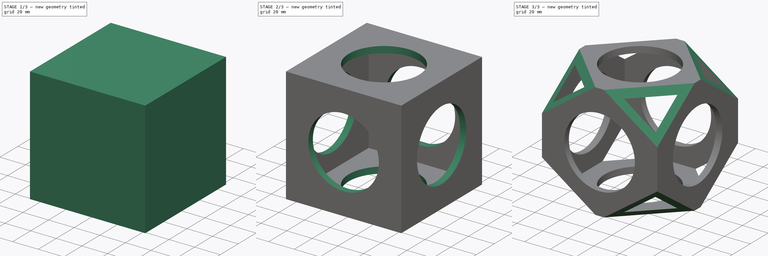
[diagram: build sequence overview — one tinted view per stage of 3, left to right]
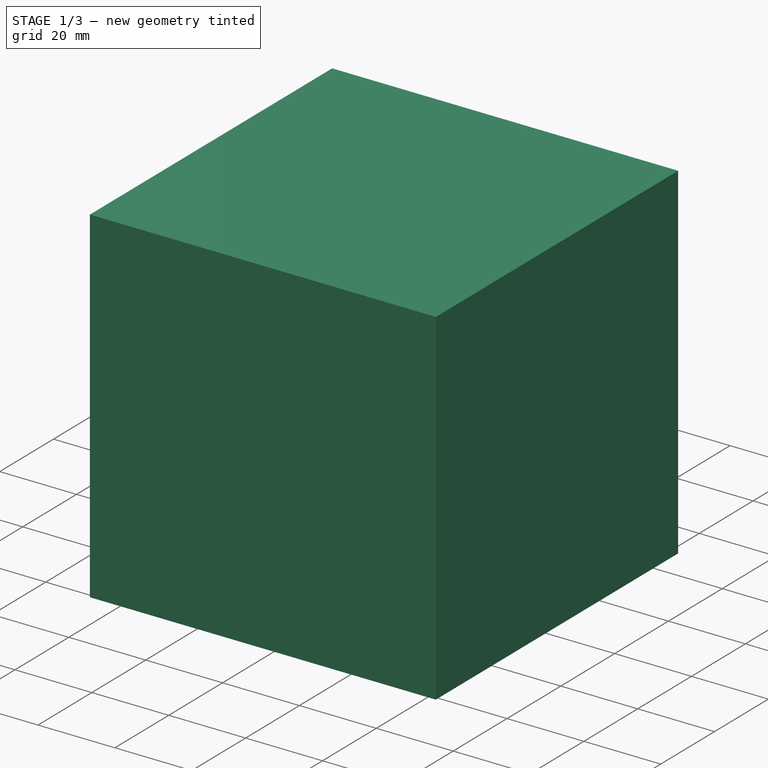
[diagram: stage 1 of 3 — iso view after this stage's code; geometry added in this stage tinted green]
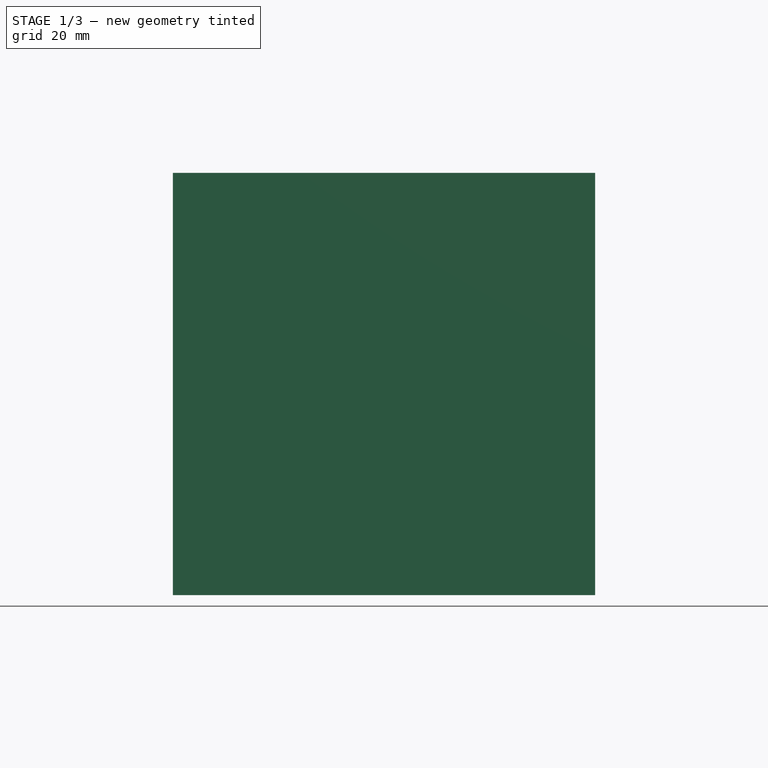
[diagram: stage 1 of 3 — front view after this stage's code; geometry added in this stage tinted green]
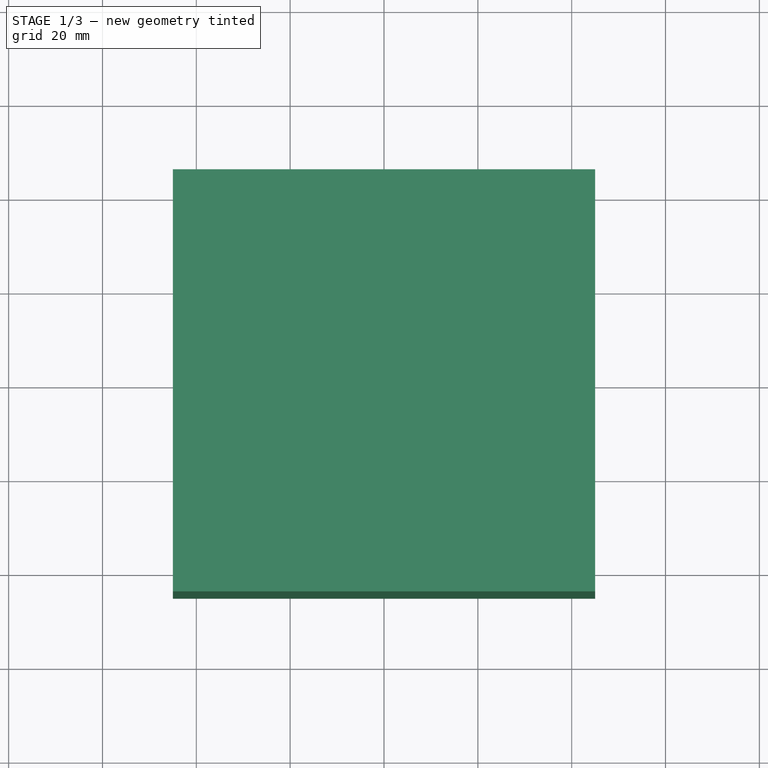
[diagram: stage 1 of 3 — top view after this stage's code; geometry added in this stage tinted green]
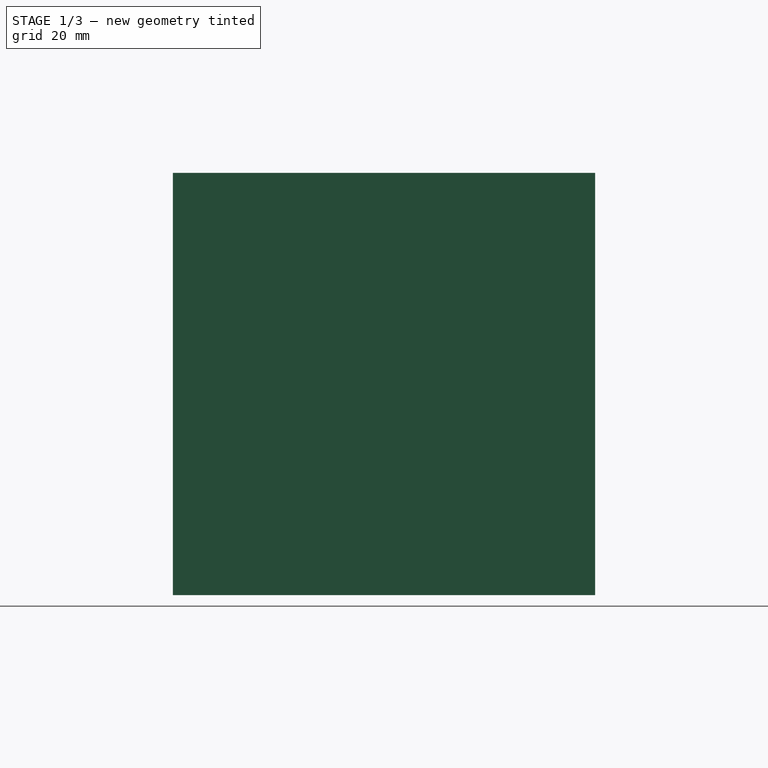
[diagram: stage 1 of 3 — right view after this stage's code; geometry added in this stage tinted green]
FCSTD DOCUMENT  (FreeCAD 0.19R23463 (Git))
Label: WhiffleBall
License: All rights reserved
LicenseURL: http://en.wikipedia.org/wiki/All_rights_reserved
objects: Sketcher::SketchObject×7, PartDesign::Pocket×6, PartDesign::Pad×1, PartDesign::Body×1
note: 22 computed .brp shape members not serialized (recipe doc carries the construction recipe); baked Part::Feature solids carry a one-line shape summary decoded from their .brp

FEATURE [Sketcher::SketchObject] Sketch  label="Sk_Würfel"
  MapMode = 5
  Support = -> [XY_Plane]
  sketch-geometry (4):
    g0: LineSegment StartX=-45 StartY=45 StartZ=0 EndX=45 EndY=45 EndZ=0
    g1: LineSegment StartX=45 StartY=45 StartZ=0 EndX=45 EndY=-45 EndZ=0
    g2: LineSegment StartX=45 StartY=-45 StartZ=0 EndX=-45 EndY=-45 EndZ=0
    g3: LineSegment StartX=-45 StartY=-45 StartZ=0 EndX=-45 EndY=45 EndZ=0
  constraints (11):
    c: Coincident(g0,g1)
    c: Coincident(g1,g2)
    c: Coincident(g2,g3)
    c: Coincident(g3,g0)
    c: Horizontal(g0)
    c: Horizontal(g2)
    c: Vertical(g1)
    c: Vertical(g3)
    c: Symmetric(g0,g1,g-1)
    c: Equal(g0,g1)
    c: Distance(g0) = 90
FEATURE [PartDesign::Pad] Pad
  Direction = (1,1,1)
  Length = 90
  Length2 = 100
  Midplane = true
  Profile = -> Sketch
  Type = 0
FEATURE [Sketcher::SketchObject] Sketch001  label="Sk_Hohlraum"
  MapMode = 5
  Support = -> [XY_Plane]
  sketch-geometry (4):
    g0: LineSegment StartX=-40 StartY=40 StartZ=0 EndX=40 EndY=40 EndZ=0
    g1: LineSegment StartX=40 StartY=40 StartZ=0 EndX=40 EndY=-40 EndZ=0
    g2: LineSegment StartX=40 StartY=-40 StartZ=0 EndX=-40 EndY=-40 EndZ=0
    g3: LineSegment StartX=-40 StartY=-40 StartZ=0 EndX=-40 EndY=40 EndZ=0
  constraints (11):
    c: Coincident(g0,g1)
    c: Coincident(g1,g2)
    c: Coincident(g2,g3)
    c: Coincident(g3,g0)
    c: Horizontal(g0)
    c: Horizontal(g2)
    c: Vertical(g1)
    c: Vertical(g3)
    c: Symmetric(g0,g1,g-1)
    c: Equal(g0,g1)
    c: Distance(g0) = 80
FEATURE [PartDesign::Pocket] Pocket
  BaseFeature = -> Pad
  Length = 80
  Length2 = 100
  Midplane = true
  Profile = -> Sketch001
  Type = 0
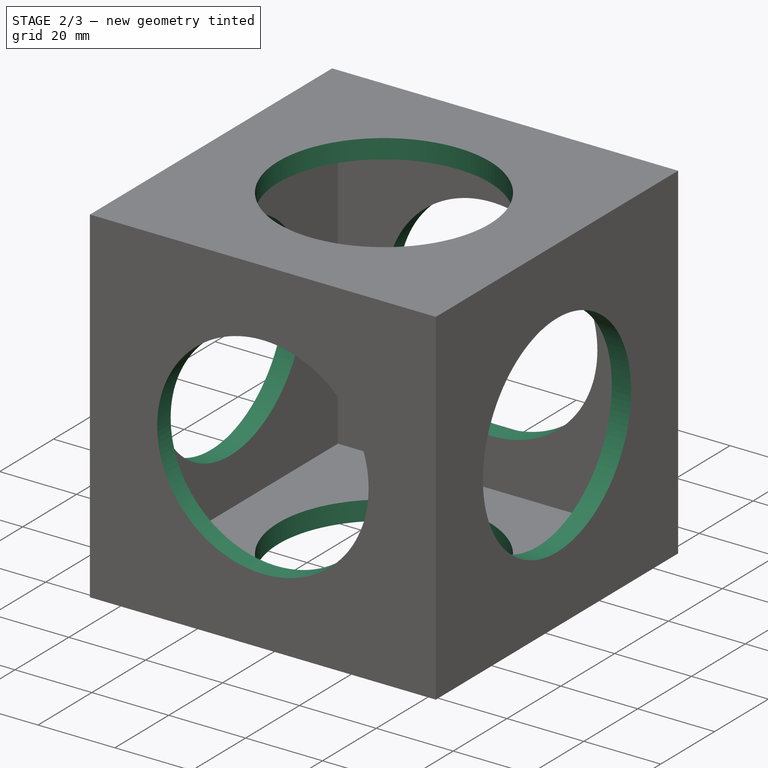
[diagram: stage 2 of 3 — iso view after this stage's code; geometry added in this stage tinted green]
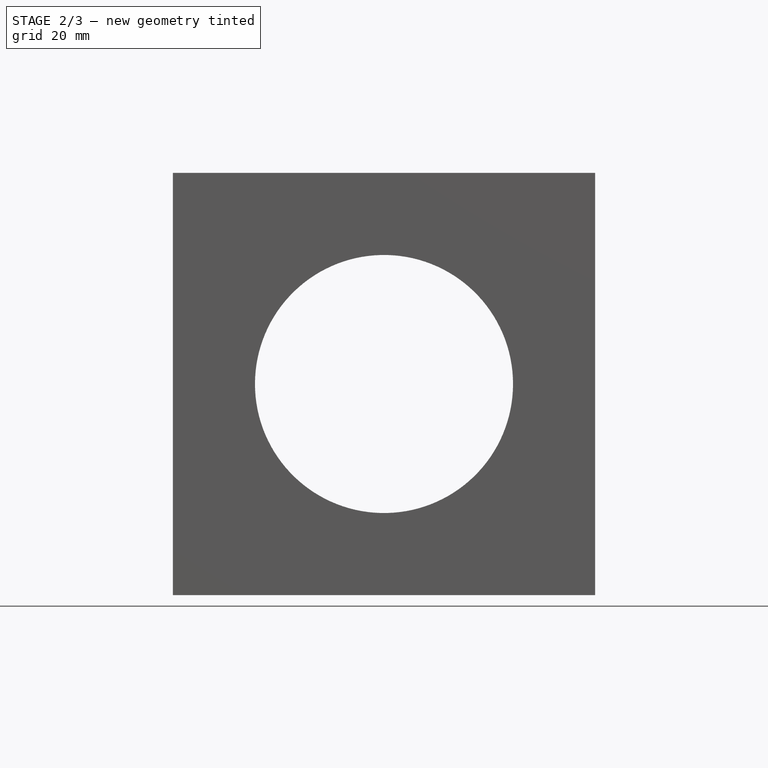
[diagram: stage 2 of 3 — front view after this stage's code; geometry added in this stage tinted green]
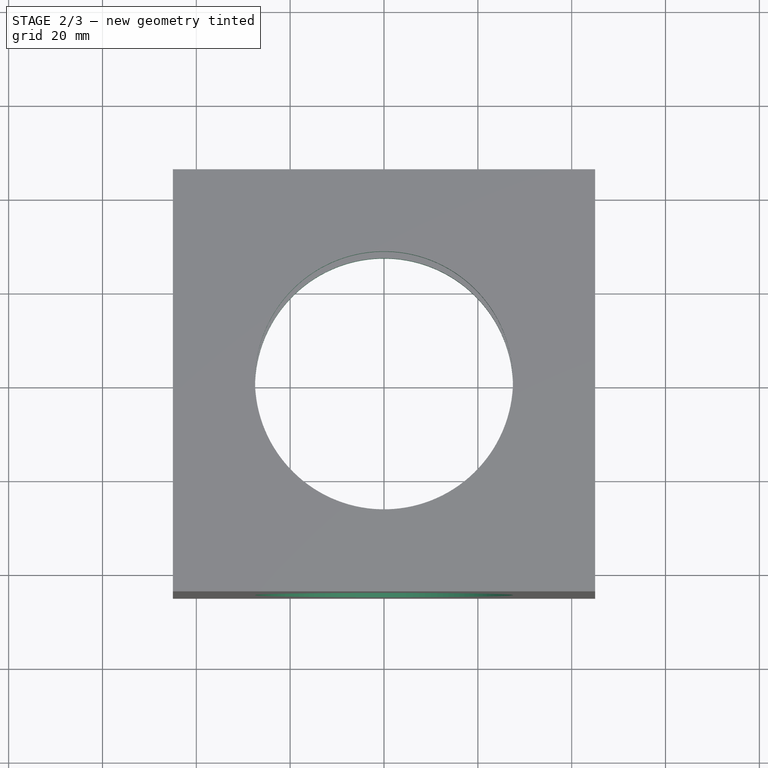
[diagram: stage 2 of 3 — top view after this stage's code; geometry added in this stage tinted green]
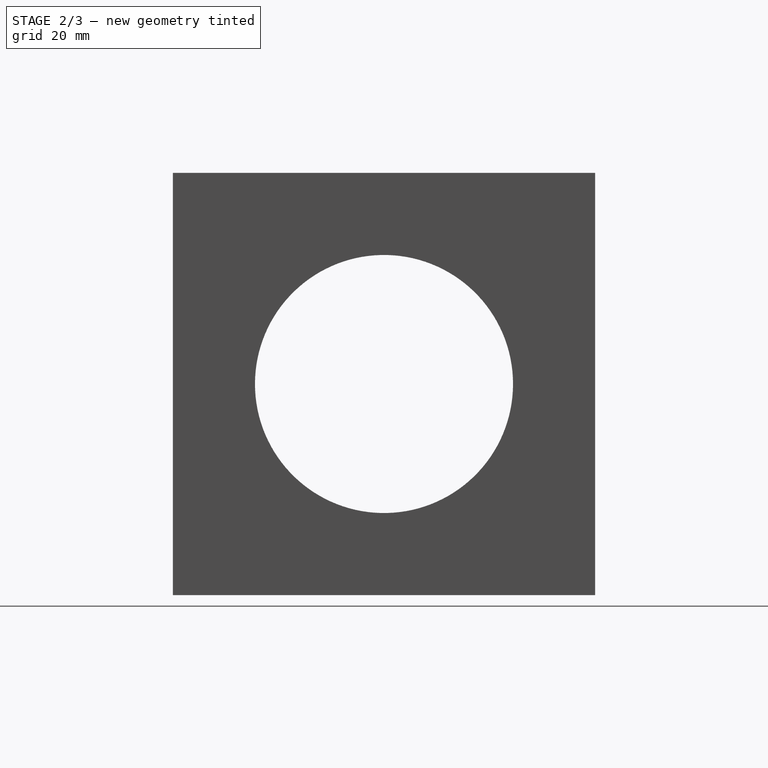
[diagram: stage 2 of 3 — right view after this stage's code; geometry added in this stage tinted green]
FEATURE [Sketcher::SketchObject] Sketch002  label="Sk_Zyl_XY"
  MapMode = 5
  Support = -> [XY_Plane]
  sketch-geometry (1):
    g0: Circle CenterX=0 CenterY=0 CenterZ=0 NormalX=0 NormalY=0 NormalZ=1 AngleXU=0 Radius=27.5
  constraints (2):
    c: Coincident(g0,g-1)
    c: Diameter(g0) = 55  'D_Zyl'
FEATURE [PartDesign::Pocket] Pocket001
  BaseFeature = -> Pocket
  Length = 5
  Length2 = 100
  Midplane = true
  Profile = -> Sketch002
  Type = 1
FEATURE [Sketcher::SketchObject] Sketch003  label="Sk_Zyl_XZ"
  MapMode = 5
  Placement = pos=(0,0,0) rot=(1,0,0;1.5708rad)
  Support = -> [XZ_Plane]
  expr: Constraints[1] = <<Sk_Zyl_XY>>.Constraints.D_Zyl
  sketch-geometry (1):
    g0: Circle CenterX=0 CenterY=0 CenterZ=0 NormalX=0 NormalY=0 NormalZ=1 AngleXU=0 Radius=27.5
  constraints (2):
    c: Coincident(g0,g-1)
    c: Diameter(g0) = 55
FEATURE [PartDesign::Pocket] Pocket002
  BaseFeature = -> Pocket001
  Length = 90
  Length2 = 100
  Midplane = true
  Profile = -> Sketch003
  Type = 1
FEATURE [Sketcher::SketchObject] Sketch004  label="Sk_Zyl_YZ"
  MapMode = 5
  Placement = pos=(0,0,0) rot=(0.57735,0.57735,0.57735;2.0944rad)
  Support = -> [YZ_Plane]
  expr: Constraints[1] = <<Sk_Zyl_XY>>.Constraints.D_Zyl
  sketch-geometry (1):
    g0: Circle CenterX=0 CenterY=0 CenterZ=0 NormalX=0 NormalY=0 NormalZ=1 AngleXU=0 Radius=27.5
  constraints (2):
    c: Coincident(g0,g-1)
    c: Diameter(g0) = 55
FEATURE [PartDesign::Pocket] Pocket003
  BaseFeature = -> Pocket002
  Length = 5
  Length2 = 100
  Midplane = true
  Profile = -> Sketch004
  Type = 1
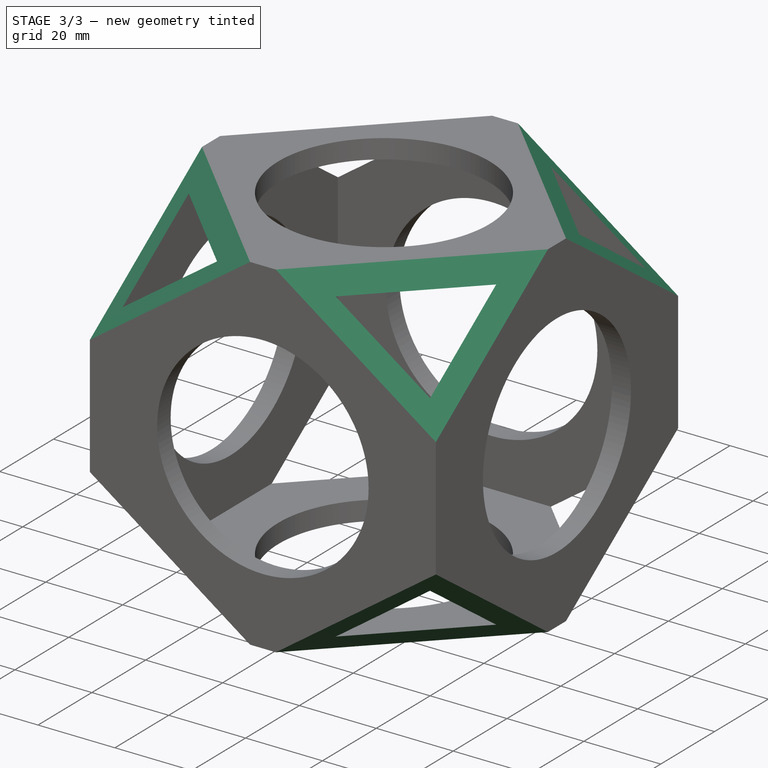
[diagram: stage 3 of 3 — iso view after this stage's code; geometry added in this stage tinted green]
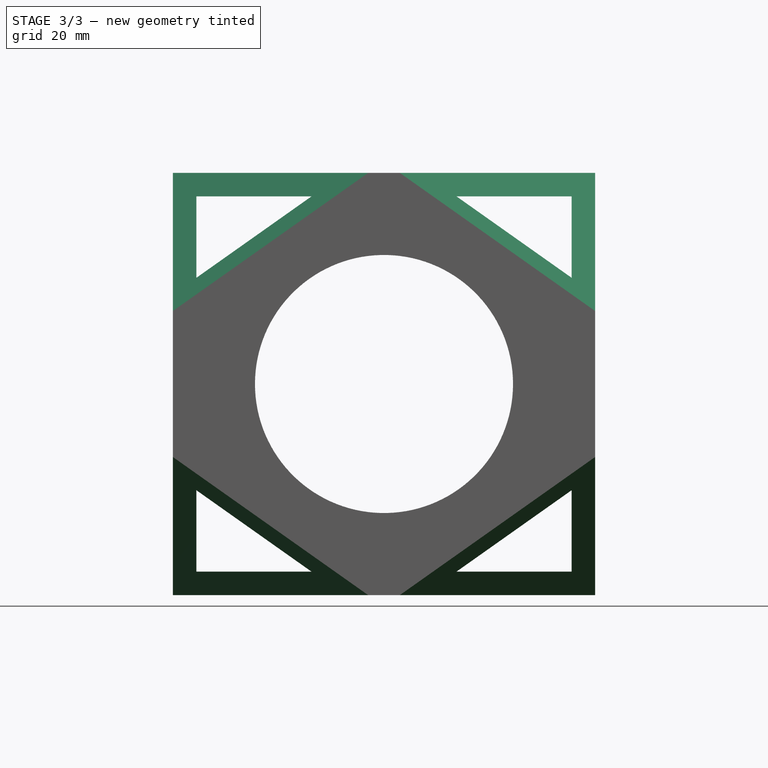
[diagram: stage 3 of 3 — front view after this stage's code; geometry added in this stage tinted green]
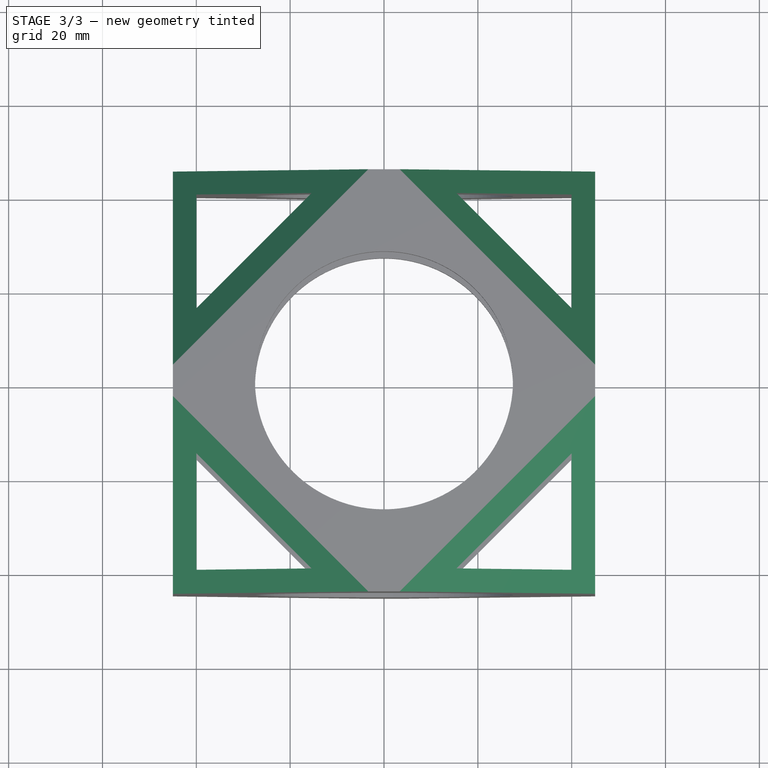
[diagram: stage 3 of 3 — top view after this stage's code; geometry added in this stage tinted green]
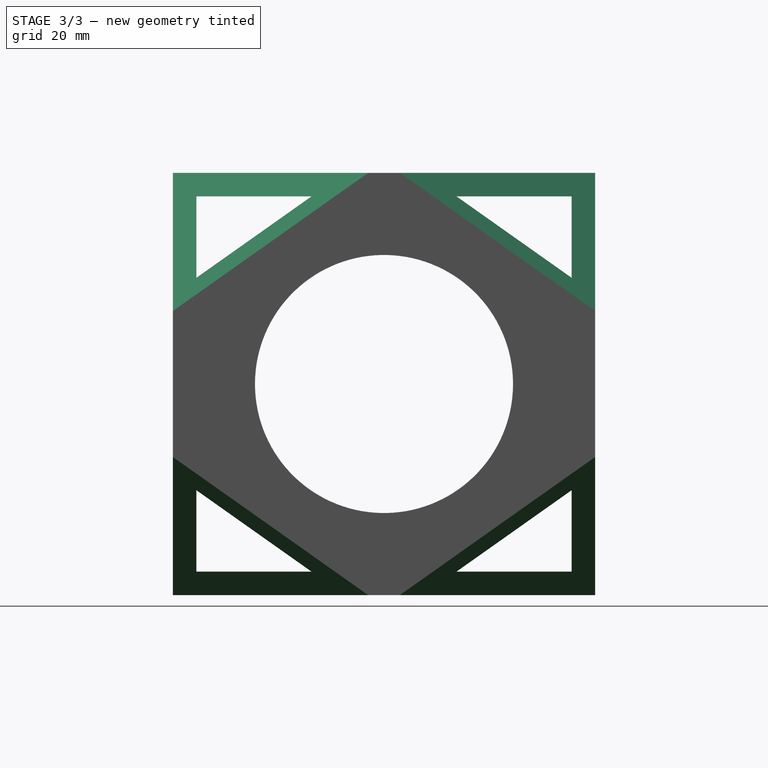
[diagram: stage 3 of 3 — right view after this stage's code; geometry added in this stage tinted green]
FEATURE [Sketcher::SketchObject] Sketch005  label="Sk_Ecken_weg_1"
  AttachmentOffset = pos=(0,0,0) rot=(0,1,0;0.785398rad)
  MapMode = 5
  Placement = pos=(0,0,0) rot=(0.862856,0.357407,0.357407;1.71777rad)
  Support = -> [XZ_Plane]
  sketch-geometry (12):
    g0: LineSegment StartX=-65 StartY=14.196 StartZ=0 EndX=-65 EndY=50 EndZ=0
    g1: LineSegment StartX=-65 StartY=50 StartZ=0 EndX=-29.196 EndY=50 EndZ=0
    g2: LineSegment StartX=-29.196 StartY=50 StartZ=0 EndX=-65 EndY=14.196 EndZ=0
    g3: LineSegment StartX=29.196 StartY=50 StartZ=0 EndX=65 EndY=50 EndZ=0
    g4: LineSegment StartX=65 StartY=50 StartZ=0 EndX=65 EndY=14.196 EndZ=0
    g5: LineSegment StartX=65 StartY=14.196 StartZ=0 EndX=29.196 EndY=50 EndZ=0
    g6: LineSegment StartX=-65 StartY=-14.196 StartZ=0 EndX=-65 EndY=-50 EndZ=0
    g7: LineSegment StartX=-65 StartY=-50 StartZ=0 EndX=-29.196 EndY=-50 EndZ=0
    g8: LineSegment StartX=-29.196 StartY=-50 StartZ=0 EndX=-65 EndY=-14.196 EndZ=0
    g9: LineSegment StartX=29.196 StartY=-50 StartZ=0 EndX=65 EndY=-50 EndZ=0
    g10: LineSegment StartX=65 StartY=-50 StartZ=0 EndX=65 EndY=-14.196 EndZ=0
    g11: LineSegment StartX=65 StartY=-14.196 StartZ=0 EndX=29.196 EndY=-50 EndZ=0
  constraints (32):
    c: Vertical(g0)
    c: Coincident(g0,g1)
    c: Horizontal(g1)
    c: Coincident(g1,g2)
    c: Coincident(g2,g0)
    c: Horizontal(g3)
    c: Coincident(g3,g4)
    c: Vertical(g4)
    c: Coincident(g4,g5)
    c: Coincident(g5,g3)
    c: Vertical(g6)
    c: Coincident(g6,g7)
    c: Horizontal(g7)
    c: Coincident(g7,g8)
    c: Coincident(g8,g6)
    c: Coincident(g9,g10)
    c: Coincident(g10,g11)
    c: Coincident(g11,g9)
    c: Distance(g3,g9) = 100  'A_hoch'
    c: Distance(g3,g0) = 130  'A_Diag'
    c: Symmetric(g1,g3,g-2)
    c: Symmetric(g4,g10,g-1)
    c: Symmetric(g9,g7,g-2)
    c: Equal(g1,g3)
    c: Equal(g4,g10)
    c: Equal(g9,g7)
    c: Equal(g6,g0)
    c: Symmetric(g0,g6,g-1)
    c: Equal(g9,g3)
    c: Distance(g-1,g8) = 56  'A_Zentrum'
    c: Equal(g0,g1)
    c: Equal(g3,g4)
FEATURE [PartDesign::Pocket] Pocket004
  BaseFeature = -> Pocket003
  Length = 5
  Length2 = 100
  Midplane = true
  Profile = -> Sketch005
  Type = 1
FEATURE [Sketcher::SketchObject] Sketch006  label="Sk_Ecken_weg_2"
  AttachmentOffset = pos=(0,0,0) rot=(0,1,0;-0.785398rad)
  MapMode = 5
  Placement = pos=(0,0,0) rot=(-0.862856,0.357407,0.357407;4.56541rad)
  Support = -> [XZ_Plane]
  expr: Constraints[32] = <<Sk_Ecken_weg_1>>.Constraints.A_Zentrum
  expr: Constraints[27] = <<Sk_Ecken_weg_1>>.Constraints.A_hoch
  expr: Constraints[28] = <<Sk_Ecken_weg_1>>.Constraints.A_Diag
  sketch-geometry (12):
    g0: LineSegment StartX=-65 StartY=50 StartZ=0 EndX=-65 EndY=14.196 EndZ=0
    g1: LineSegment StartX=-65 StartY=14.196 StartZ=0 EndX=-29.196 EndY=50 EndZ=0
    g2: LineSegment StartX=-29.196 StartY=50 StartZ=0 EndX=-65 EndY=50 EndZ=0
    g3: LineSegment StartX=29.196 StartY=50 StartZ=0 EndX=65 EndY=50 EndZ=0
    g4: LineSegment StartX=65 StartY=50 StartZ=0 EndX=65 EndY=14.196 EndZ=0
    g5: LineSegment StartX=65 StartY=14.196 StartZ=0 EndX=29.196 EndY=50 EndZ=0
    g6: LineSegment StartX=65 StartY=-14.196 StartZ=0 EndX=65 EndY=-50 EndZ=0
    g7: LineSegment StartX=65 StartY=-50 StartZ=0 EndX=29.196 EndY=-50 EndZ=0
    g8: LineSegment StartX=29.196 StartY=-50 StartZ=0 EndX=65 EndY=-14.196 EndZ=0
    g9: LineSegment StartX=-65 StartY=-14.196 StartZ=0 EndX=-65 EndY=-50 EndZ=0
    g10: LineSegment StartX=-65 StartY=-50 StartZ=0 EndX=-29.196 EndY=-50 EndZ=0
    g11: LineSegment StartX=-29.196 StartY=-50 StartZ=0 EndX=-65 EndY=-14.196 EndZ=0
  constraints (33):
    c: Vertical(g0)
    c: Coincident(g0,g1)
    c: Coincident(g1,g2)
    c: Coincident(g2,g0)
    c: Horizontal(g2)
    c: Horizontal(g3)
    c: Coincident(g3,g4)
    c: Vertical(g4)
    c: Coincident(g4,g5)
    c: Coincident(g5,g3)
    c: Vertical(g6)
    c: Coincident(g6,g7)
    c: Horizontal(g7)
    c: Coincident(g7,g8)
    c: Coincident(g8,g6)
    c: Vertical(g9)
    c: Coincident(g9,g10)
    c: Horizontal(g10)
    c: Coincident(g10,g11)
    c: Coincident(g11,g9)
    c: Symmetric(g0,g9,g-1)
    c: Symmetric(g1,g3,g-2)
    c: Symmetric(g4,g6,g-1)
    c: Equal(g0,g2)
    c: Equal(g3,g4)
    c: Equal(g6,g7)
    c: Equal(g9,g10)
    c: DistanceY(g6,g3) = 100
    c: DistanceX(g0,g3) = 130
    c: Equal(g2,g3)
    c: Equal(g4,g6)
    c: Equal(g7,g10)
    c: Distance(g-1,g11) = 56
FEATURE [PartDesign::Pocket] Pocket005  label="Pock_WhiffleBall"
  BaseFeature = -> Pocket004
  Length = 5
  Length2 = 100
  Midplane = true
  Profile = -> Sketch006
  Type = 1
FEATURE [PartDesign::Body] Body
  Group = -> [Sketch,Pad,Sketch001,Pocket,Sketch002,Pocket001,Sketch003,Pocket002,Sketch004,Pocket003,Sketch005,Pocket004,Sketch006,Pocket005]
  Origin = -> Origin
  Tip = -> Pocket005
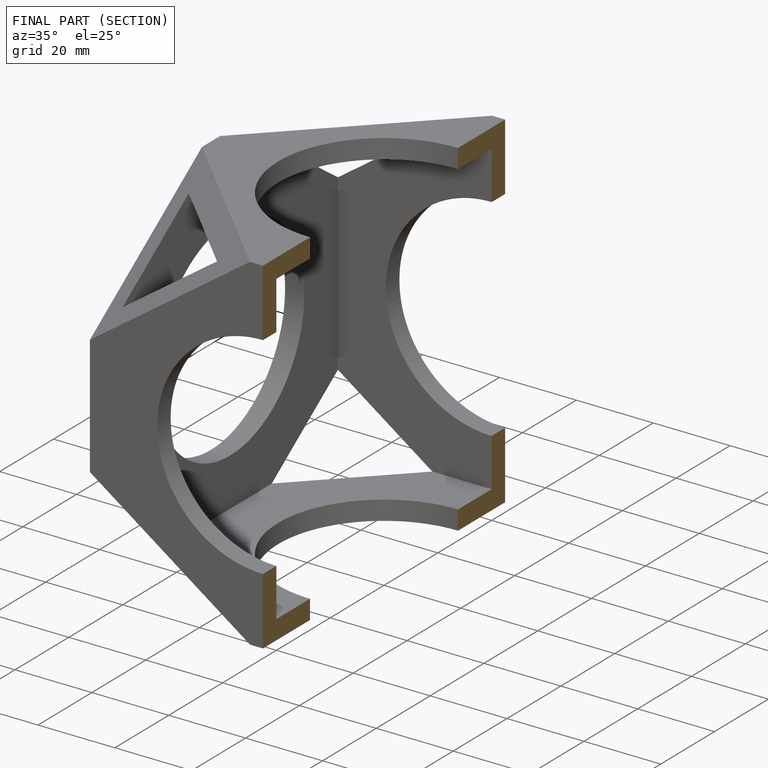
[diagram: finished part — half-section view (interior)]
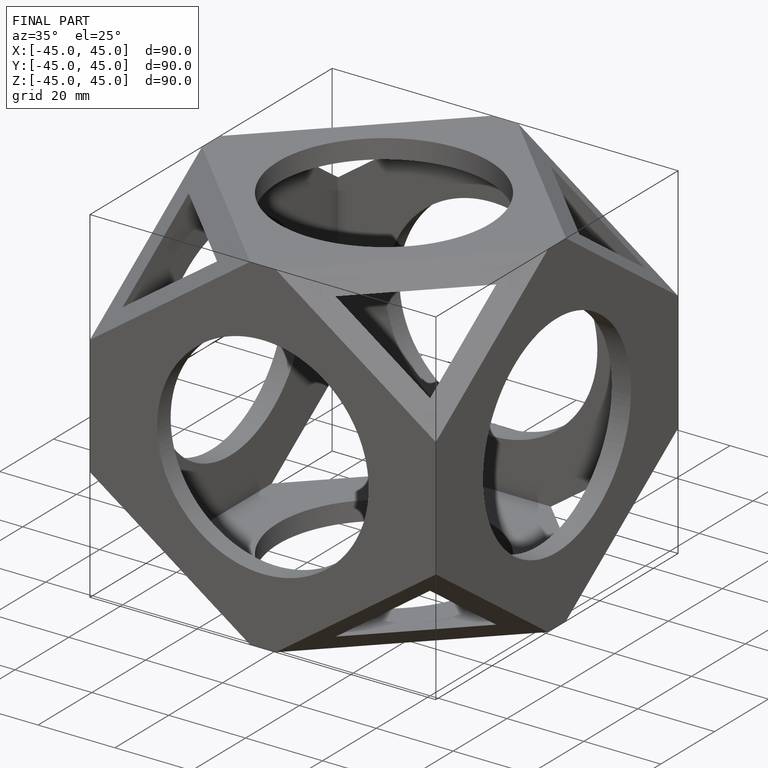
[diagram: finished part — iso view with bounding-box wireframe]
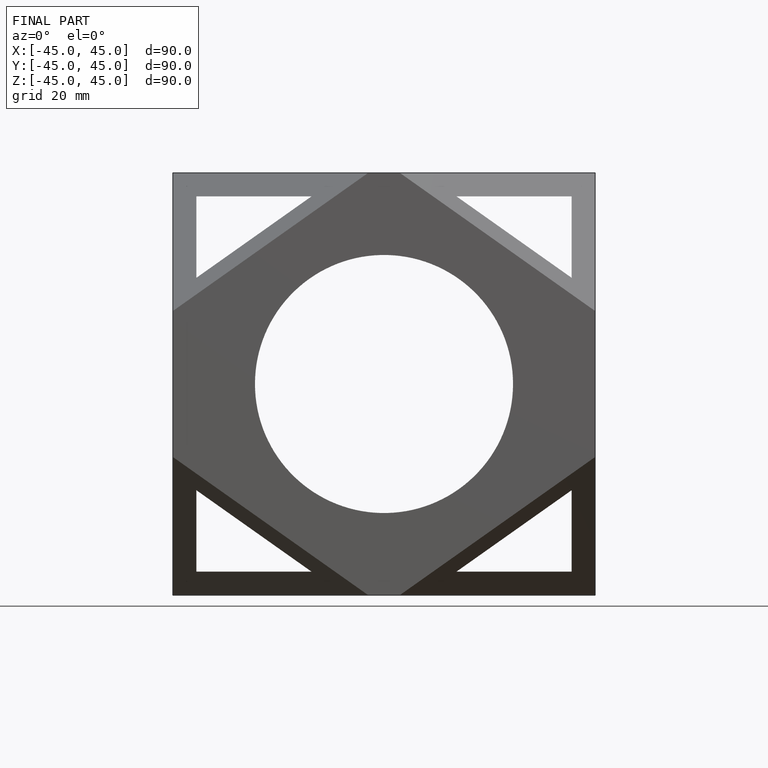
[diagram: finished part — front view with bounding-box wireframe]
